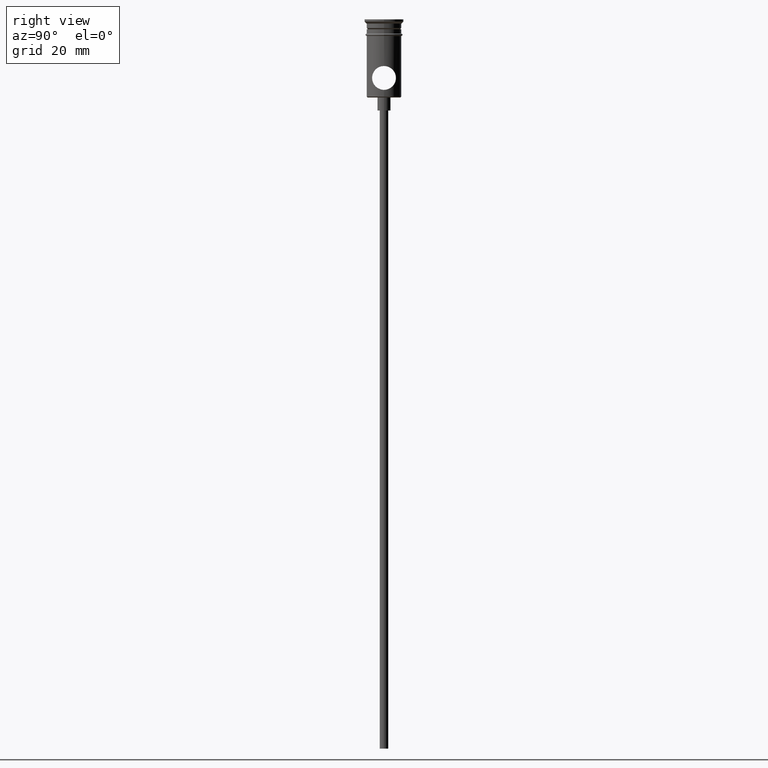
[diagram: clean part render]
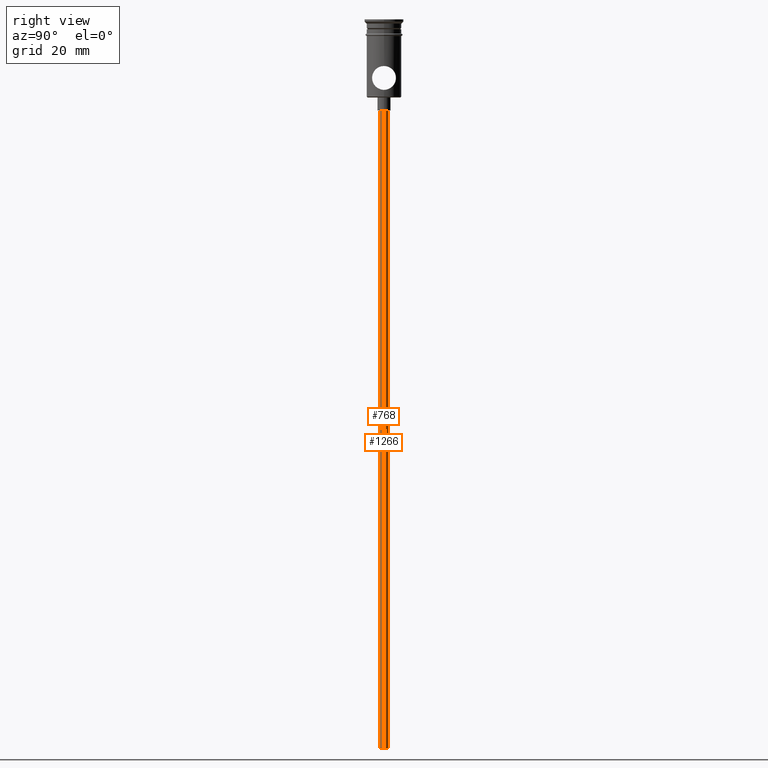
[diagram: same view with one multi-face feature highlighted, each face labeled with its STEP entity id]
A machine part, right view. The highlighted faces form ONE feature: a constant-radius fillet chain: 2 tangent blend faces with common blend radius 1 mm. The faces share edges in the B-rep.
Their STEP definitions:
[1] entity #768 (Cylinder):
#90 = DIRECTION ( 'NONE',  ( 1.000000000000000000, 0.000000000000000000, 0.000000000000000000 ) ) ;
#112 = DIRECTION ( 'NONE',  ( -0.000000000000000000, -0.000000000000000000, 1.000000000000000000 ) ) ;
#127 = EDGE_CURVE ( 'NONE', #174, #150, #1340, .T. ) ;
#150 = VERTEX_POINT ( 'NONE', #954 ) ;
#174 = VERTEX_POINT ( 'NONE', #288 ) ;
#182 = LINE ( 'NONE', #624, #1104 ) ;
#214 = VECTOR ( 'NONE', #705, 1000.000000000000000 ) ;
#288 = CARTESIAN_POINT ( 'NONE',  ( 0.9999999999999997780, 0.000000000000000000, -167.9999999999999716 ) ) ;
#314 = CARTESIAN_POINT ( 'NONE',  ( 0.000000000000000000, 0.000000000000000000, -167.9999999999999716 ) ) ;
#324 = ORIENTED_EDGE ( 'NONE', *, *, #949, .F. ) ;
#397 = DIRECTION ( 'NONE',  ( -0.000000000000000000, -0.000000000000000000, 1.000000000000000000 ) ) ;
#429 = DIRECTION ( 'NONE',  ( 0.000000000000000000, 0.000000000000000000, -1.000000000000000000 ) ) ;
#500 = CARTESIAN_POINT ( 'NONE',  ( -0.9999999999999997780, 1.224646799147352961E-16, -20.99999999999999645 ) ) ;
#510 = ORIENTED_EDGE ( 'NONE', *, *, #127, .T. ) ;
#520 = CARTESIAN_POINT ( 'NONE',  ( 0.000000000000000000, 0.000000000000000000, -167.9999999999999716 ) ) ;
#570 = AXIS2_PLACEMENT_3D ( 'NONE', #314, #744, #1067 ) ;
#590 = AXIS2_PLACEMENT_3D ( 'NONE', #520, #112, #90 ) ;
#610 = AXIS2_PLACEMENT_3D ( 'NONE', #1325, #429, #1082 ) ;
#624 = CARTESIAN_POINT ( 'NONE',  ( -0.9999999999999997780, 1.224646799147352961E-16, -167.9999999999999716 ) ) ;
#705 = DIRECTION ( 'NONE',  ( -0.000000000000000000, -0.000000000000000000, 1.000000000000000000 ) ) ;
#729 = EDGE_CURVE ( 'NONE', #1363, #1398, #182, .T. ) ;
#744 = DIRECTION ( 'NONE',  ( 0.000000000000000000, 0.000000000000000000, -1.000000000000000000 ) ) ;
#768 = ADVANCED_FACE ( 'NONE', ( #1413 ), #1072, .T. ) ;
#852 = CIRCLE ( 'NONE', #570, 0.9999999999999997780 ) ;
#902 = EDGE_LOOP ( 'NONE', ( #1354, #324, #510, #1324 ) ) ;
#913 = CARTESIAN_POINT ( 'NONE',  ( 0.9999999999999997780, 0.000000000000000000, -167.9999999999999716 ) ) ;
#949 = EDGE_CURVE ( 'NONE', #174, #1363, #852, .T. ) ;
#954 = CARTESIAN_POINT ( 'NONE',  ( 0.9999999999999997780, 0.000000000000000000, -20.99999999999999645 ) ) ;
#1016 = EDGE_CURVE ( 'NONE', #150, #1398, #1232, .T. ) ;
#1067 = DIRECTION ( 'NONE',  ( -1.000000000000000000, 0.000000000000000000, 0.000000000000000000 ) ) ;
#1072 = CYLINDRICAL_SURFACE ( 'NONE', #590, 0.9999999999999997780 ) ;
#1082 = DIRECTION ( 'NONE',  ( -1.000000000000000000, 0.000000000000000000, 0.000000000000000000 ) ) ;
#1104 = VECTOR ( 'NONE', #397, 1000.000000000000000 ) ;
#1232 = CIRCLE ( 'NONE', #610, 0.9999999999999997780 ) ;
#1324 = ORIENTED_EDGE ( 'NONE', *, *, #1016, .T. ) ;
#1325 = CARTESIAN_POINT ( 'NONE',  ( 0.000000000000000000, 0.000000000000000000, -20.99999999999999645 ) ) ;
#1340 = LINE ( 'NONE', #913, #214 ) ;
#1354 = ORIENTED_EDGE ( 'NONE', *, *, #729, .F. ) ;
#1363 = VERTEX_POINT ( 'NONE', #1396 ) ;
#1396 = CARTESIAN_POINT ( 'NONE',  ( -0.9999999999999997780, 1.224646799147352961E-16, -167.9999999999999716 ) ) ;
#1398 = VERTEX_POINT ( 'NONE', #500 ) ;
#1413 = FACE_OUTER_BOUND ( 'NONE', #902, .T. ) ;
[2] entity #1266 (Cylinder):
#48 = ORIENTED_EDGE ( 'NONE', *, *, #1309, .T. ) ;
#88 = CARTESIAN_POINT ( 'NONE',  ( 0.000000000000000000, 0.000000000000000000, -167.9999999999999716 ) ) ;
#127 = EDGE_CURVE ( 'NONE', #174, #150, #1340, .T. ) ;
#150 = VERTEX_POINT ( 'NONE', #954 ) ;
#164 = FACE_OUTER_BOUND ( 'NONE', #487, .T. ) ;
#174 = VERTEX_POINT ( 'NONE', #288 ) ;
#182 = LINE ( 'NONE', #624, #1104 ) ;
#214 = VECTOR ( 'NONE', #705, 1000.000000000000000 ) ;
#228 = DIRECTION ( 'NONE',  ( -1.000000000000000000, 0.000000000000000000, 0.000000000000000000 ) ) ;
#283 = DIRECTION ( 'NONE',  ( 1.000000000000000000, 0.000000000000000000, 0.000000000000000000 ) ) ;
#284 = CIRCLE ( 'NONE', #1261, 0.9999999999999997780 ) ;
#288 = CARTESIAN_POINT ( 'NONE',  ( 0.9999999999999997780, 0.000000000000000000, -167.9999999999999716 ) ) ;
#348 = DIRECTION ( 'NONE',  ( 0.000000000000000000, 0.000000000000000000, -1.000000000000000000 ) ) ;
#397 = DIRECTION ( 'NONE',  ( -0.000000000000000000, -0.000000000000000000, 1.000000000000000000 ) ) ;
#487 = EDGE_LOOP ( 'NONE', ( #600, #1332, #48, #1219 ) ) ;
#500 = CARTESIAN_POINT ( 'NONE',  ( -0.9999999999999997780, 1.224646799147352961E-16, -20.99999999999999645 ) ) ;
#528 = CYLINDRICAL_SURFACE ( 'NONE', #743, 0.9999999999999997780 ) ;
#571 = CIRCLE ( 'NONE', #764, 0.9999999999999997780 ) ;
#600 = ORIENTED_EDGE ( 'NONE', *, *, #1041, .F. ) ;
#624 = CARTESIAN_POINT ( 'NONE',  ( -0.9999999999999997780, 1.224646799147352961E-16, -167.9999999999999716 ) ) ;
#705 = DIRECTION ( 'NONE',  ( -0.000000000000000000, -0.000000000000000000, 1.000000000000000000 ) ) ;
#717 = DIRECTION ( 'NONE',  ( -0.000000000000000000, -0.000000000000000000, 1.000000000000000000 ) ) ;
#729 = EDGE_CURVE ( 'NONE', #1363, #1398, #182, .T. ) ;
#743 = AXIS2_PLACEMENT_3D ( 'NONE', #88, #717, #283 ) ;
#764 = AXIS2_PLACEMENT_3D ( 'NONE', #1049, #958, #1173 ) ;
#913 = CARTESIAN_POINT ( 'NONE',  ( 0.9999999999999997780, 0.000000000000000000, -167.9999999999999716 ) ) ;
#954 = CARTESIAN_POINT ( 'NONE',  ( 0.9999999999999997780, 0.000000000000000000, -20.99999999999999645 ) ) ;
#958 = DIRECTION ( 'NONE',  ( 0.000000000000000000, 0.000000000000000000, -1.000000000000000000 ) ) ;
#1041 = EDGE_CURVE ( 'NONE', #1363, #174, #284, .T. ) ;
#1049 = CARTESIAN_POINT ( 'NONE',  ( 0.000000000000000000, 0.000000000000000000, -20.99999999999999645 ) ) ;
#1104 = VECTOR ( 'NONE', #397, 1000.000000000000000 ) ;
#1173 = DIRECTION ( 'NONE',  ( -1.000000000000000000, 0.000000000000000000, 0.000000000000000000 ) ) ;
#1213 = CARTESIAN_POINT ( 'NONE',  ( 0.000000000000000000, 0.000000000000000000, -167.9999999999999716 ) ) ;
#1219 = ORIENTED_EDGE ( 'NONE', *, *, #127, .F. ) ;
#1261 = AXIS2_PLACEMENT_3D ( 'NONE', #1213, #348, #228 ) ;
#1266 = ADVANCED_FACE ( 'NONE', ( #164 ), #528, .T. ) ;
#1309 = EDGE_CURVE ( 'NONE', #1398, #150, #571, .T. ) ;
#1332 = ORIENTED_EDGE ( 'NONE', *, *, #729, .T. ) ;
#1340 = LINE ( 'NONE', #913, #214 ) ;
#1363 = VERTEX_POINT ( 'NONE', #1396 ) ;
#1396 = CARTESIAN_POINT ( 'NONE',  ( -0.9999999999999997780, 1.224646799147352961E-16, -167.9999999999999716 ) ) ;
#1398 = VERTEX_POINT ( 'NONE', #500 ) ;